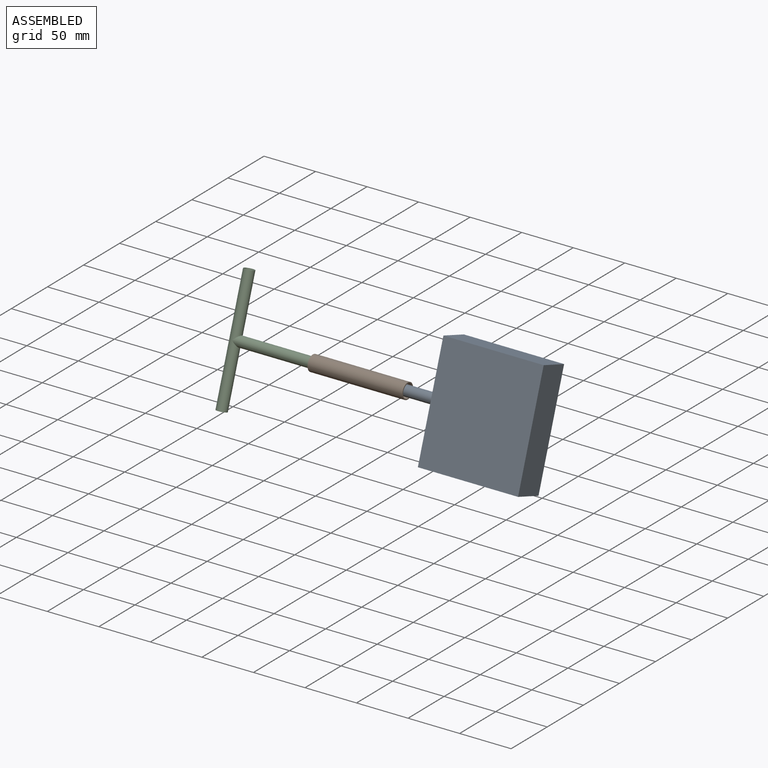
[diagram: assembled view]
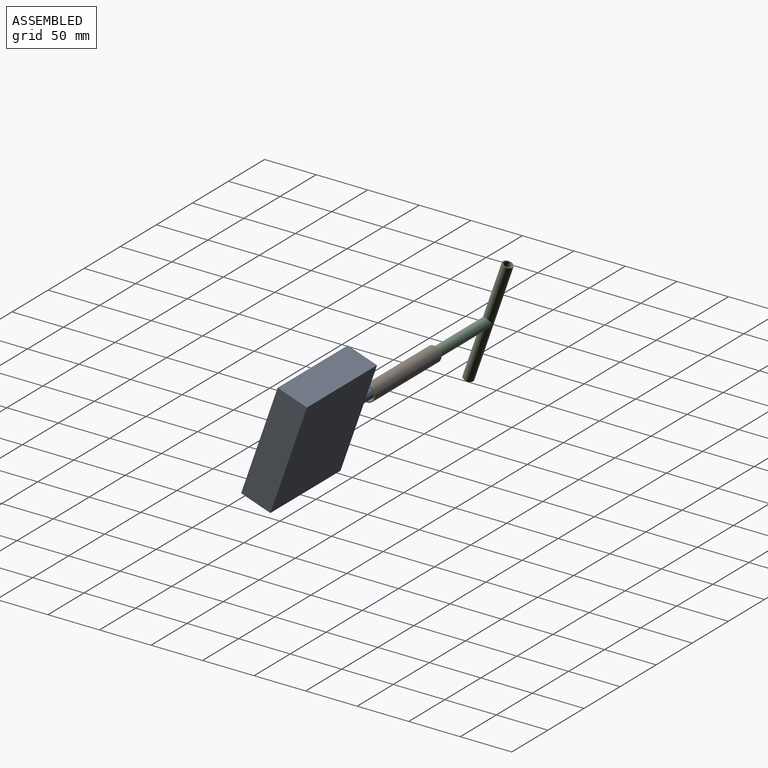
[diagram: assembled view, second angle]
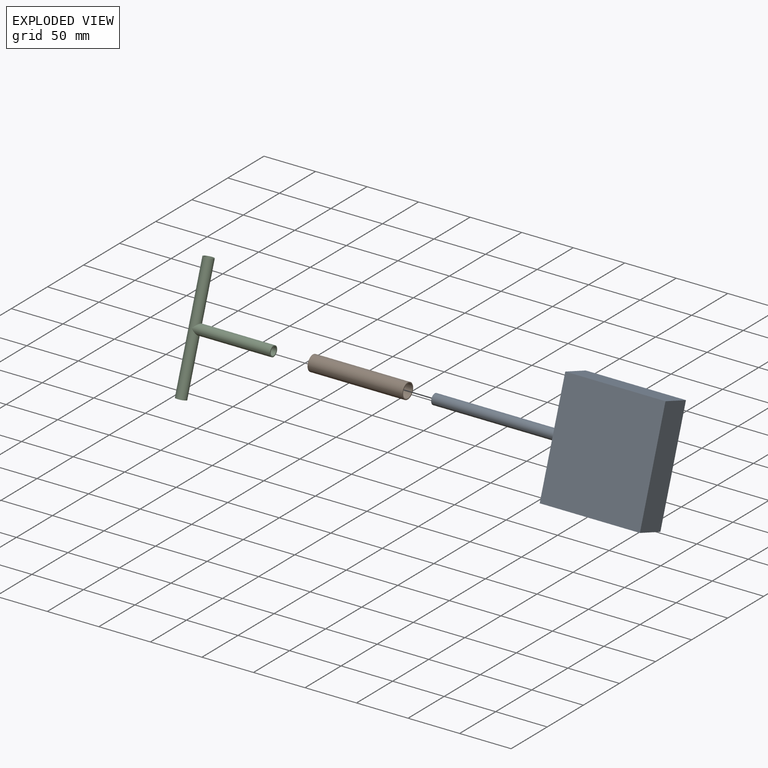
[diagram: exploded view]
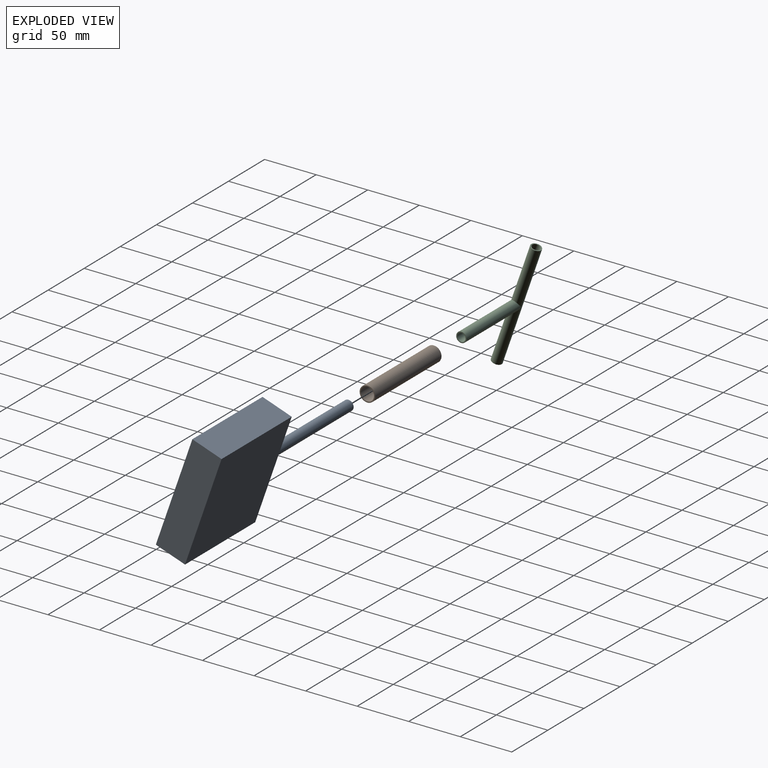
[diagram: exploded view, second angle]
ASSEMBLY  parts=3 mates=2
PART A: 8 faces, bbox 221.4x107.9x30 mm
  f0: plane 10x10mm, normal (-1,0,0), area 78.5mm2, adj f1
  f1: cylinder r=5mm len=124.13mm, axis (1,0,0), area 3899.6mm2, adj f0,f2
  f2: plane 107.94x30mm, normal (-1,0,0), area 3159.7mm2, adj f1,f3,f5,f6,f7
  f3: plane 97.25x30mm, normal (0,-1,0), area 2917.4mm2, adj f2,f4,f6,f7
  f4: plane 107.94x30mm, normal (1,0,0), area 3238.3mm2, adj f3,f5,f6,f7
  f5: plane 97.25x30mm, normal (0,1,0), area 2917.4mm2, adj f2,f4,f6,f7
  f6: plane 107.94x97.25mm, normal (0,0,1), area 10497.1mm2, adj f2,f3,f4,f5
  f7: plane 107.94x97.25mm, normal (0,0,-1), area 10497.1mm2, adj f2,f3,f4,f5
PART B: 4 faces, bbox 92x15x15 mm
  f0: plane 15x15mm, normal (-1,0,0), area 44mm2, adj f2,f3
  f1: plane 15x15mm, normal (1,0,0), area 44mm2, adj f2,f3
  f2: cylinder r=7.5mm len=92.03mm, axis (1,0,0), area 4336.6mm2, adj f0,f1
  f3: cylinder r=6.5mm len=92.03mm, axis (1,0,0), area 3758.4mm2, adj f0,f1
PART C: 7 faces, bbox 81.4x116.4x10 mm
  f0: cylinder r=5mm len=116.37mm, axis (0,-1,0), area 3555.9mm2, adj f2,f5,f6
  f1: plane 10x10mm, normal (1,0,0), area 28.3mm2, adj f2,f4
  f2: cylinder r=5mm len=76.4mm, axis (1,0,0), area 2300.1mm2, adj f0,f1
  f3: cylinder r=4mm len=116.37mm, axis (0,-1,0), area 2860.7mm2, adj f4,f5,f6
  f4: cylinder r=4mm len=76.4mm, axis (1,0,0), area 1856.1mm2, adj f1,f3
  f5: plane 10x10mm, normal (0,-1,0), area 28.3mm2, adj f0,f3
  f6: plane 10x10mm, normal (0,1,0), area 28.3mm2, adj f0,f3
PLACE A rot(axis=(-1,0,0),109.2deg) t=(83.69,77.16,74.23)mm
PLACE B t=(190.81,45.69,-217.67)mm fixed
PLACE C rot(axis=(-1,0,0),109.2deg) t=(92.82,48.06,-9.47)mm
MATE slider A.f1 <-> C.f2  axis (-1,0,0) through (130.63,45.69,-16.29)mm
MATE revolute B.f2 <-> A.f1  axis (-1,0,0) through (130.63,45.69,-16.29)mm
